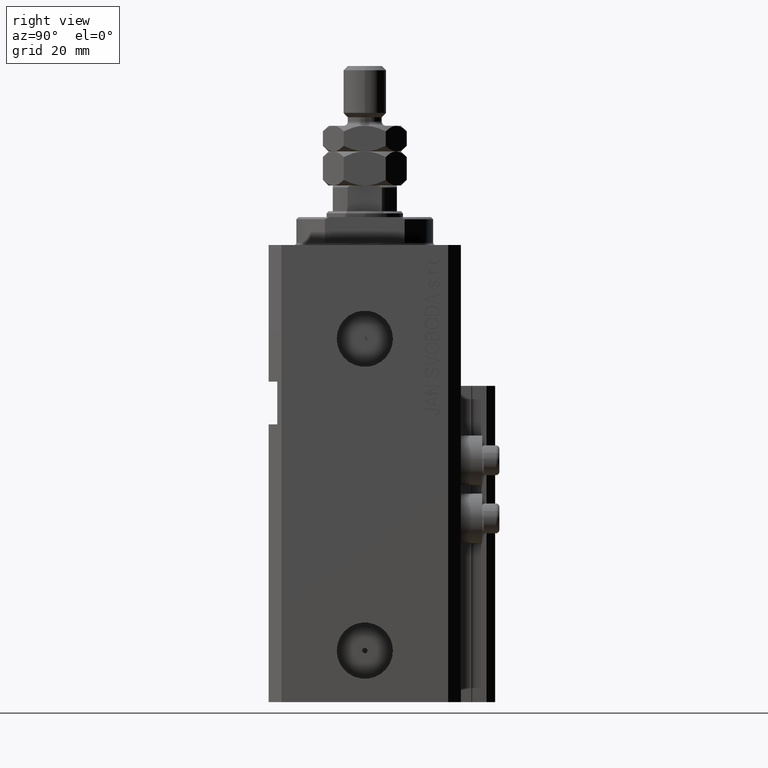
[diagram: clean part render]
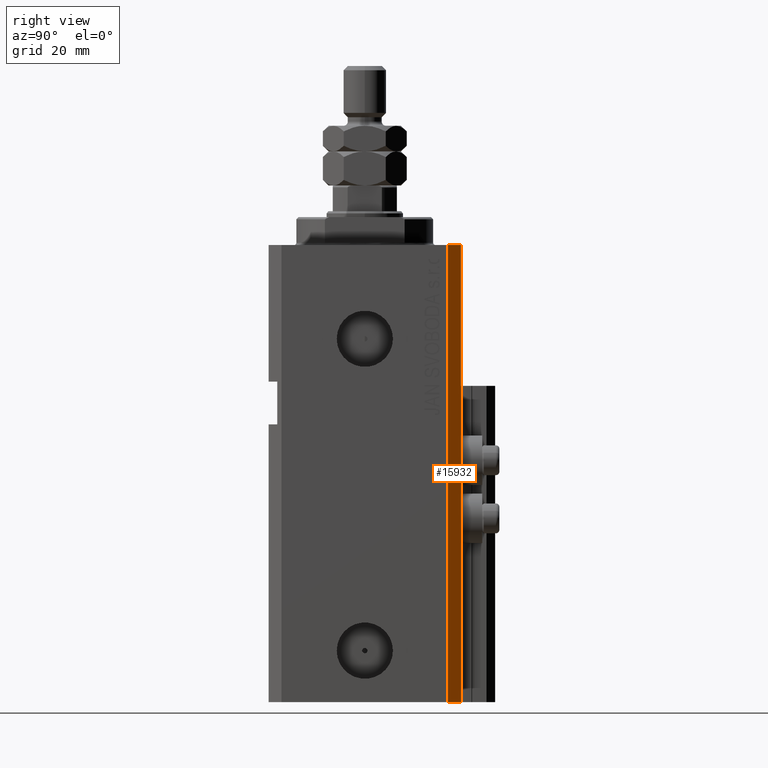
[diagram: same view with one face highlighted and labeled with its STEP entity id]
A machine part, right view. The second image highlights one B-rep face of the part: STEP entity #15932.
In plain terms, the highlighted planar face has unit normal (0.7071, 0.7071, 0).
Its self-contained STEP definition (entity closure, byte-faithful):
#1889 = AXIS2_PLACEMENT_3D ( 'NONE', #3113, #22523, #26255 ) ;
#3113 = CARTESIAN_POINT ( 'NONE',  ( 32.49999999999702993, 19.49999999999945999, -107.0000000000000000 ) ) ;
#7313 = EDGE_LOOP ( 'NONE', ( #18698, #40737, #17709, #42720 ) ) ;
#7849 = EDGE_CURVE ( 'NONE', #31103, #15085, #23201, .T. ) ;
#7997 = EDGE_CURVE ( 'NONE', #41745, #13706, #13185, .T. ) ;
#10249 = CARTESIAN_POINT ( 'NONE',  ( 29.49999999999707967, 22.49999999999951328, -107.0000000000000000 ) ) ;
#13185 = LINE ( 'NONE', #47583, #28769 ) ;
#13706 = VERTEX_POINT ( 'NONE', #10249 ) ;
#15085 = VERTEX_POINT ( 'NONE', #22262 ) ;
#15932 = ADVANCED_FACE ( 'NONE', ( #48703 ), #33228, .T. ) ;
#16343 = DIRECTION ( 'NONE',  ( 0.000000000000000000, 0.000000000000000000, 1.000000000000000000 ) ) ;
#16374 = EDGE_CURVE ( 'NONE', #41745, #31103, #30915, .T. ) ;
#17709 = ORIENTED_EDGE ( 'NONE', *, *, #7997, .T. ) ;
#18698 = ORIENTED_EDGE ( 'NONE', *, *, #7849, .F. ) ;
#20966 = VECTOR ( 'NONE', #28155, 1000.000000000000000 ) ;
#21904 = CARTESIAN_POINT ( 'NONE',  ( 32.49999999999702993, 19.49999999999945999, -107.0000000000000000 ) ) ;
#22262 = CARTESIAN_POINT ( 'NONE',  ( 29.49999999999707967, 22.49999999999951328, 0.000000000000000000 ) ) ;
#22523 = DIRECTION ( 'NONE',  ( 0.7071067811865597852, 0.7071067811865352493, -0.000000000000000000 ) ) ;
#23201 = LINE ( 'NONE', #31148, #27177 ) ;
#24409 = DIRECTION ( 'NONE',  ( -0.7071067811865352493, 0.7071067811865597852, 0.000000000000000000 ) ) ;
#26255 = DIRECTION ( 'NONE',  ( -0.7071067811865352493, 0.7071067811865597852, 0.000000000000000000 ) ) ;
#27177 = VECTOR ( 'NONE', #38403, 1000.000000000000000 ) ;
#28155 = DIRECTION ( 'NONE',  ( 0.000000000000000000, 0.000000000000000000, 1.000000000000000000 ) ) ;
#28769 = VECTOR ( 'NONE', #24409, 1000.000000000000000 ) ;
#29201 = CARTESIAN_POINT ( 'NONE',  ( 29.49999999999707967, 22.49999999999951328, -107.0000000000000000 ) ) ;
#30915 = LINE ( 'NONE', #46139, #20966 ) ;
#31103 = VERTEX_POINT ( 'NONE', #36933 ) ;
#31148 = CARTESIAN_POINT ( 'NONE',  ( 32.49999999999702993, 19.49999999999945999, 0.000000000000000000 ) ) ;
#33228 = PLANE ( 'NONE',  #1889 ) ;
#35284 = LINE ( 'NONE', #29201, #45307 ) ;
#36933 = CARTESIAN_POINT ( 'NONE',  ( 32.49999999999702993, 19.49999999999945999, 0.000000000000000000 ) ) ;
#38403 = DIRECTION ( 'NONE',  ( -0.7071067811865352493, 0.7071067811865597852, 0.000000000000000000 ) ) ;
#40737 = ORIENTED_EDGE ( 'NONE', *, *, #16374, .F. ) ;
#41745 = VERTEX_POINT ( 'NONE', #21904 ) ;
#42720 = ORIENTED_EDGE ( 'NONE', *, *, #44097, .T. ) ;
#44097 = EDGE_CURVE ( 'NONE', #13706, #15085, #35284, .T. ) ;
#45307 = VECTOR ( 'NONE', #16343, 1000.000000000000000 ) ;
#46139 = CARTESIAN_POINT ( 'NONE',  ( 32.49999999999702993, 19.49999999999945999, -107.0000000000000000 ) ) ;
#47583 = CARTESIAN_POINT ( 'NONE',  ( 32.49999999999702993, 19.49999999999945999, -107.0000000000000000 ) ) ;
#48703 = FACE_OUTER_BOUND ( 'NONE', #7313, .T. ) ;